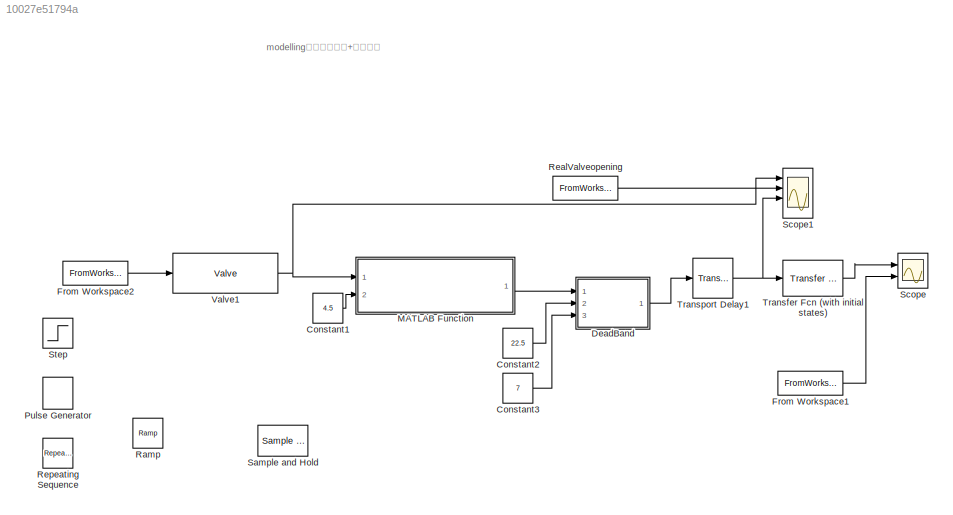
MODEL slx_10027e51794a
KIND model
CONFIG AbsTol = auto
CONFIG EnableMultiTasking = off
CONFIG FixedStep = auto
CONFIG MaxStep = auto
CONFIG MinStep = auto
CONFIG RelTol = 1e-3
CONFIG SampleTimeConstraint = Unconstrained
CONFIG SolverName = VariableStepAuto
CONFIG StartTime = 0.0
CONFIG StopTime = 800
BLOCK [Constant] Constant1
  Value = 4.5
BLOCK [Constant] Constant2
  Value = 22.5
BLOCK [Constant] Constant3
  Value = 7
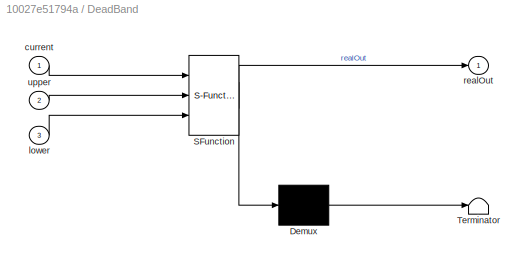
BLOCK [SubSystem] DeadBand
  ErrorFcn = Stateflow.Translate.translate
  PermitHierarchicalResolution = ExplicitOnly
  Ports = [3, 1]
  RequestExecContextInheritance = off
  SFBlockType = MATLAB Function
  TreatAsAtomicUnit = on
BLOCK [Demux] DeadBand/ Demux 
  Outputs = 1
  Ports = [1, 1]
BLOCK [S-Function] DeadBand/ SFunction 
  EnableBusSupport = on
  FunctionName = sf_sfun
  PortCounts = [3 2]
  Ports = [3, 2]
  SFcnIsStateOwnerBlock = off
  SFunctionDeploymentMode = off
  Tag = Stateflow S-Function 1
BLOCK [Terminator] DeadBand/ Terminator 
BLOCK [Inport] DeadBand/current
BLOCK [Inport] DeadBand/lower
  Port = 3
BLOCK [Outport] DeadBand/realOut
BLOCK [Inport] DeadBand/upper
  Port = 2
BLOCK [FromWorkspace] From Workspace1
  VariableName = testData(:,[1,5])
BLOCK [FromWorkspace] From Workspace2
  SampleTime = 1
  VariableName = testData(:,[1,4])
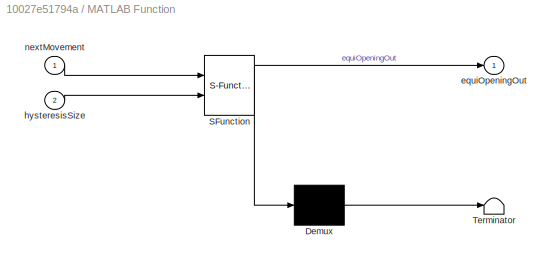
BLOCK [SubSystem] MATLAB Function
  ErrorFcn = Stateflow.Translate.translate
  PermitHierarchicalResolution = ExplicitOnly
  Ports = [2, 1]
  RequestExecContextInheritance = off
  SFBlockType = MATLAB Function
  TreatAsAtomicUnit = on
BLOCK [Demux] MATLAB Function/ Demux 
  Outputs = 1
  Ports = [1, 1]
BLOCK [S-Function] MATLAB Function/ SFunction 
  EnableBusSupport = on
  FunctionName = sf_sfun
  PortCounts = [2 2]
  Ports = [2, 2]
  SFcnIsStateOwnerBlock = off
  SFunctionDeploymentMode = off
  Tag = Stateflow S-Function 2
BLOCK [Terminator] MATLAB Function/ Terminator 
BLOCK [Outport] MATLAB Function/equiOpeningOut
BLOCK [Inport] MATLAB Function/hysteresisSize
  Port = 2
BLOCK [Inport] MATLAB Function/nextMovement
BLOCK [DiscretePulseGenerator] Pulse Generator
  Amplitude = 100
  Period = 500
  PhaseDelay = 50
  Ports = [0, 1]
  PulseType = Time based
  PulseWidth = 50
BLOCK [Reference] Ramp  REF=simulink/Sources/Ramp
  Ports = [0, 1]
  SourceBlock = simulink/Sources/Ramp
  SourceProductBaseCode = SL
  SourceType = Ramp
BLOCK [FromWorkspace] RealValveopening
  VariableName = testData(:,[1,8])
BLOCK [Reference] Repeating Sequence  REF=simulink/Sources/Repeating
Sequence
  Ports = [0, 1]
  SourceBlock = simulink/Sources/Repeating\nSequence
  SourceProductBaseCode = SL
  SourceType = Repeating table
BLOCK [Reference] Sample and Hold  REF=powerlib_meascontrol/Additional Components/Sample and
Hold
  Ports = [2, 1]
  SourceBlock = powerlib_meascontrol/Additional Components/Sample and\nHold
  SourceProductBaseCode = PS
  SourceType = Sample and Hold
BLOCK [Scope] Scope
  Floating = off
  NumInputPorts = 2
  Ports = [2]
  ScopeSpecificationString = Simulink.scopes.TimeScopeBlockCfg('CurrentConfiguration', extmgr.ConfigurationSet(extmgr.Configuration('Core','General UI',true),extmgr.Configuration('Core','Source UI',true),extmgr.Configuration('Sources','WiredSimulink',true,'DataLoggingVariableName','ScopeData1','DataLogging',true),extmgr.Configuration('Visuals','Time Domain',true,'SerializedDisplays',{struct('MinYLimReal','-0.09','MaxYLimReal'...<+1552ch>
BLOCK [Scope] Scope1
  Floating = off
  NumInputPorts = 4
  Ports = [4]
  ScopeSpecificationString = Simulink.scopes.TimeScopeBlockCfg('CurrentConfiguration', extmgr.ConfigurationSet(extmgr.Configuration('Core','General UI',true),extmgr.Configuration('Core','Source UI',true),extmgr.Configuration('Sources','WiredSimulink',true,'DataLoggingVariableName','ScopeData1'),extmgr.Configuration('Visuals','Time Domain',true,'SerializedDisplays',{struct('MinYLimReal','-4.20525','MaxYLimReal','37.84725','YLa...<+1873ch>
BLOCK [Step] Step
  After = 100
  SampleTime = 0
  Time = 10
BLOCK [Reference] Transfer Fcn (with initial states)  REF=simulink_extras/Additional
Linear/Transfer Fcn
(with initial states)
  Ports = [1, 1]
  SourceBlock = simulink_extras/Additional\nLinear/Transfer Fcn\n(with initial states)
  SourceProductBaseCode = SL
  SourceType = Transfer Function with Initial States
BLOCK [TransportDelay] Transport Delay1
  DelayTime = 3
  Ports = [1, 1]
BLOCK [Reference] Valve1  REF=IMT_Library/Valve
  Ports = [1, 1]
  SourceBlock = IMT_Library/Valve
  SourceProductName = Imitation
ANNOTATION (root): modelling中用有效行程+输出上限
LINE Constant1:1 -> MATLAB Function:2
LINE Constant2:1 -> DeadBand:2
LINE Constant3:1 -> DeadBand:3
LINE DeadBand:1 -> Transport Delay1:1
LINE From Workspace1:1 -> Scope:2
LINE From Workspace2:1 -> Valve1:1
LINE MATLAB Function:1 -> DeadBand:1
LINE RealValveopening:1 -> Scope1:2
LINE Transfer Fcn (with initial states):1 -> Scope:1
NET Transport Delay1:1 -> Scope1:3, Transfer Fcn (with initial states):1
NET Valve1:1 -> MATLAB Function:1, Scope1:1
note: NET lines group one-source signal fan-out (src -> all destinations, sorted); 1:1 wires keep LINE
CHART MATLAB Function states=1 transitions=1
  STATE_LABEL 'eML_blk_kernel()'
  STATE_LABEL 'SCRIPT:\nfunction equiOpeningOut  = fcn(nextMovement,hysteresisSize)\n%[equiOpeningOut,previousDirectionOut]\npersistent previousDirection; %阀门移动是否同向,默认true为上升\npersistent hysteresisBuffer;\npersistent equiOpening; %阀门等效开度，带缓存\npersistent currentValve; %缓存上一步的阀门开度，实际的阀门开度\n\n% 静态变量初始化\nif(isempty(currentValve))\n    currentValve=nextMovement;\nend\n\nif(isempty(equiOpening))\n    equiOpening=nextMovement;\nend\n\n...<+1330ch>'
CHART DeadBand states=1 transitions=1
  STATE_LABEL 'eML_blk_kernel()'
  STATE_LABEL 'SCRIPT:\nfunction realOut = deadBandLimit(current,upper,lower)\nif(current<=lower)\n    realOut = 0;\nelseif(current>upper)\n    realOut=upper;\nelse\n    realOut=current;\nend\n'
CHART  states=0 transitions=0
CHART  states=0 transitions=0
